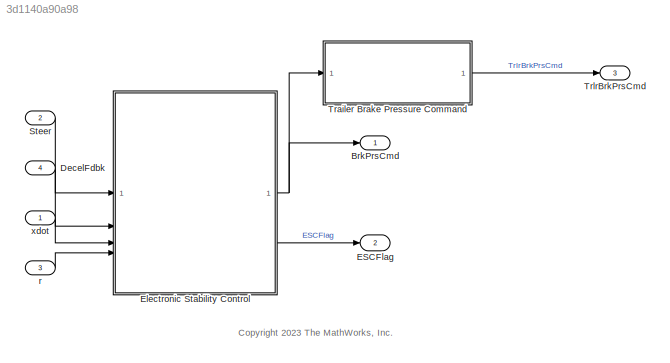
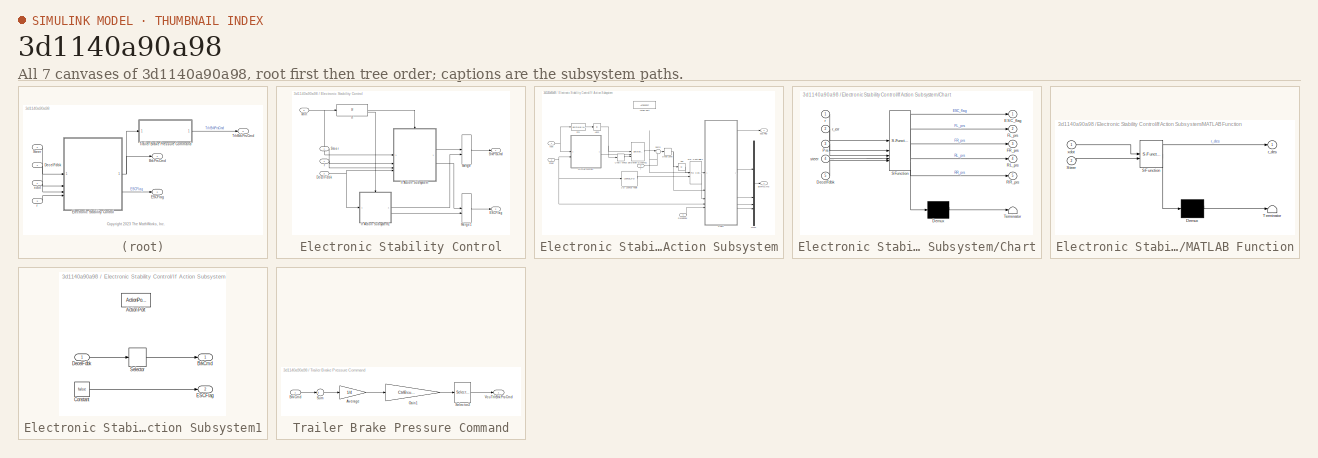
[diagram: thumbnail index - all 7 canvases of the model, root first then tree order]
MODEL slx_3d1140a90a98
KIND model
BLOCK [Outport] BrkPrsCmd
  OutDataTypeStr = double
  VectorParamsAs1DForOutWhenUnconnected = off
BLOCK [Inport] DecelFdbk
  OutDataTypeStr = double
  Port = 4
  PortDimensions = 1
BLOCK [Outport] ESCFlag
  OutDataTypeStr = boolean
  Port = 2
BLOCK [SubSystem] Electronic Stability Control
BLOCK [Outport] Electronic Stability Control/BrkPrsCmd
BLOCK [Inport] Electronic Stability Control/DecelFdbk
  Port = 2
BLOCK [Outport] Electronic Stability Control/ESCFlag
  Port = 2
BLOCK [If] Electronic Stability Control/If
  IfExpression = u1 >= xdot_en
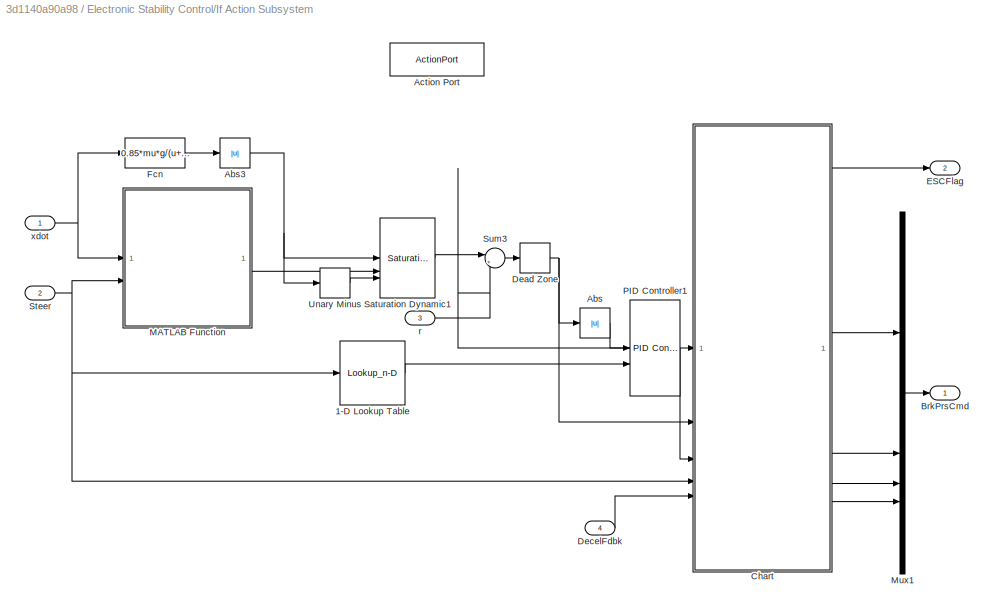
BLOCK [SubSystem] Electronic Stability Control/If Action Subsystem
  TreatAsAtomicUnit = on
BLOCK [Lookup_n-D] Electronic Stability Control/If Action Subsystem/1-D Lookup Table
  BreakpointsForDimension1 = xdotbpt
  InputPortMap = u0
  InternalRulePriority = Speed
  NumberOfTableDimensions = 1
  RndMeth = Simplest
  Table = PGain
BLOCK [Abs] Electronic Stability Control/If Action Subsystem/Abs
  SaturateOnIntegerOverflow = off
BLOCK [Abs] Electronic Stability Control/If Action Subsystem/Abs3
  SaturateOnIntegerOverflow = off
BLOCK [ActionPort] Electronic Stability Control/If Action Subsystem/Action Port
BLOCK [Outport] Electronic Stability Control/If Action Subsystem/BrkPrsCmd
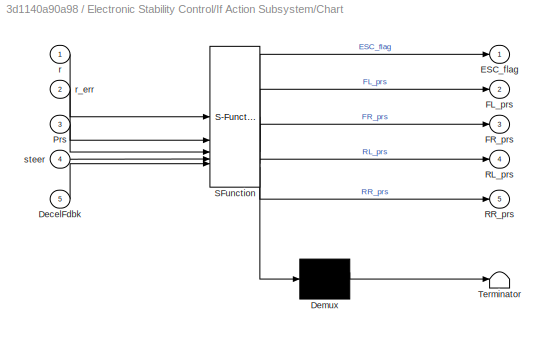
BLOCK [SubSystem] Electronic Stability Control/If Action Subsystem/Chart
  ErrorFcn = Stateflow.Translate.translate
  InitFcn = vehdynicon('vehdynalgo', gcb);
  PermitHierarchicalResolution = ExplicitOnly
  SFBlockType = Chart
  TreatAsAtomicUnit = on
BLOCK [Demux] Electronic Stability Control/If Action Subsystem/Chart/ Demux 
  Outputs = 1
BLOCK [S-Function] Electronic Stability Control/If Action Subsystem/Chart/ SFunction 
  EnableBusSupport = off
  FunctionName = sf_sfun
  PortCounts = [5 6]
  SFcnIsStateOwnerBlock = off
  SFunctionDeploymentMode = off
  Tag = Stateflow S-Function 2
BLOCK [Terminator] Electronic Stability Control/If Action Subsystem/Chart/ Terminator 
BLOCK [Inport] Electronic Stability Control/If Action Subsystem/Chart/DecelFdbk
  Port = 5
BLOCK [Outport] Electronic Stability Control/If Action Subsystem/Chart/ESC_flag
BLOCK [Outport] Electronic Stability Control/If Action Subsystem/Chart/FL_prs
  Port = 2
BLOCK [Outport] Electronic Stability Control/If Action Subsystem/Chart/FR_prs
  Port = 3
BLOCK [Inport] Electronic Stability Control/If Action Subsystem/Chart/Prs
  Port = 3
BLOCK [Outport] Electronic Stability Control/If Action Subsystem/Chart/RL_prs
  Port = 4
BLOCK [Outport] Electronic Stability Control/If Action Subsystem/Chart/RR_prs
  Port = 5
BLOCK [Inport] Electronic Stability Control/If Action Subsystem/Chart/r
BLOCK [Inport] Electronic Stability Control/If Action Subsystem/Chart/r_err
  Port = 2
BLOCK [Inport] Electronic Stability Control/If Action Subsystem/Chart/steer
  Port = 4
BLOCK [DeadZone] Electronic Stability Control/If Action Subsystem/Dead Zone
  LowerValue = -0.001
  UpperValue = 0.001
BLOCK [Inport] Electronic Stability Control/If Action Subsystem/DecelFdbk
  Port = 4
BLOCK [Outport] Electronic Stability Control/If Action Subsystem/ESCFlag
  Port = 2
BLOCK [Fcn] Electronic Stability Control/If Action Subsystem/Fcn
  Expr = 0.85*mu*g/(u+0.01)
BLOCK [SubSystem] Electronic Stability Control/If Action Subsystem/MATLAB Function
  ErrorFcn = Stateflow.Translate.translate
  InitFcn = vehdynicon('vehdynalgo', gcb);
  PermitHierarchicalResolution = ExplicitOnly
  SFBlockType = MATLAB Function
  TreatAsAtomicUnit = on
BLOCK [Demux] Electronic Stability Control/If Action Subsystem/MATLAB Function/ Demux 
  Outputs = 1
BLOCK [S-Function] Electronic Stability Control/If Action Subsystem/MATLAB Function/ SFunction 
  EnableBusSupport = off
  FunctionName = sf_sfun
  Parameters = L,USG,g
  PortCounts = [2 2]
  SFcnIsStateOwnerBlock = off
  SFunctionDeploymentMode = off
  Tag = Stateflow S-Function 3
BLOCK [Terminator] Electronic Stability Control/If Action Subsystem/MATLAB Function/ Terminator 
BLOCK [Inport] Electronic Stability Control/If Action Subsystem/MATLAB Function/Steer
  Port = 2
BLOCK [Outport] Electronic Stability Control/If Action Subsystem/MATLAB Function/r_des
BLOCK [Inport] Electronic Stability Control/If Action Subsystem/MATLAB Function/xdot
BLOCK [Mux] Electronic Stability Control/If Action Subsystem/Mux1
  DisplayOption = bar
BLOCK [Reference] Electronic Stability Control/If Action Subsystem/PID Controller1  REF=slpidlib/PID Controller
  LibrarySourceBlock = simulink/Continuous/PID Controller
  SourceBlock = slpidlib/PID Controller
  SourceType = PID 1dof
BLOCK [Reference] Electronic Stability Control/If Action Subsystem/Saturation Dynamic1  REF=simulink/Discontinuities/Saturation
Dynamic
  SourceBlock = simulink/Discontinuities/Saturation\nDynamic
  SourceType = Saturation Dynamic
BLOCK [Inport] Electronic Stability Control/If Action Subsystem/Steer
  Port = 2
BLOCK [Sum] Electronic Stability Control/If Action Subsystem/Sum3
  Inputs = |+-
BLOCK [UnaryMinus] Electronic Stability Control/If Action Subsystem/Unary Minus
BLOCK [Inport] Electronic Stability Control/If Action Subsystem/r
  Port = 3
BLOCK [Inport] Electronic Stability Control/If Action Subsystem/xdot
BLOCK [SubSystem] Electronic Stability Control/If Action Subsystem1
  TreatAsAtomicUnit = on
BLOCK [ActionPort] Electronic Stability Control/If Action Subsystem1/Action Port
BLOCK [Outport] Electronic Stability Control/If Action Subsystem1/BrkCmd
BLOCK [Constant] Electronic Stability Control/If Action Subsystem1/Constant
  Value = false
BLOCK [Inport] Electronic Stability Control/If Action Subsystem1/DecelFdbk
BLOCK [Outport] Electronic Stability Control/If Action Subsystem1/ESCFlag
  Port = 2
BLOCK [Selector] Electronic Stability Control/If Action Subsystem1/Selector
  IndexOptions = Index vector (dialog)
  Indices = [1 1 1 1]
  InputPortWidth = 1
  OutputSizes = 1
BLOCK [Merge] Electronic Stability Control/Merge
BLOCK [Merge] Electronic Stability Control/Merge1
BLOCK [Inport] Electronic Stability Control/Steer
BLOCK [Inport] Electronic Stability Control/r
  Port = 4
BLOCK [Inport] Electronic Stability Control/xdot
  Port = 3
BLOCK [Inport] Steer
  OutDataTypeStr = double
  Port = 2
  PortDimensions = 1
BLOCK [SubSystem] Trailer Brake Pressure Command
BLOCK [Gain] Trailer Brake Pressure Command/Average
  Gain = 1/4
BLOCK [Inport] Trailer Brake Pressure Command/BrkCmd
BLOCK [Gain] Trailer Brake Pressure Command/Gain1
  Gain = CtrlBcuTrlrBrkGain
BLOCK [Selector] Trailer Brake Pressure Command/Selector2
  IndexOptions = Index vector (dialog)
  Indices = [1 1 1 1 1 1]
  InputPortWidth = 1
  OutputSizes = 1
BLOCK [Sum] Trailer Brake Pressure Command/Sum
  Inputs = +
BLOCK [Outport] Trailer Brake Pressure Command/VcuTrlrBrkPrsCmd
BLOCK [Outport] TrlrBrkPrsCmd
  Port = 3
  PortDimensions = 6
  VectorParamsAs1DForOutWhenUnconnected = off
BLOCK [Inport] r
  OutDataTypeStr = double
  Port = 3
  PortDimensions = 1
BLOCK [Inport] xdot
  OutDataTypeStr = double
  PortDimensions = 1
ANNOTATION (root): <copyright redacted>
LINE DecelFdbk:1 -> Electronic Stability Control:2
NET Electronic Stability Control/DecelFdbk:1 -> Electronic Stability Control/If Action Subsystem1:1, Electronic Stability Control/If Action Subsystem:4
LINE Electronic Stability Control/If Action Subsystem/1-D Lookup Table:1 -> Electronic Stability Control/If Action Subsystem/PID Controller1:2
NET Electronic Stability Control/If Action Subsystem/Abs3:1 -> Electronic Stability Control/If Action Subsystem/Saturation Dynamic1:1, Electronic Stability Control/If Action Subsystem/Unary Minus:1
LINE Electronic Stability Control/If Action Subsystem/Abs:1 -> Electronic Stability Control/If Action Subsystem/PID Controller1:1
LINE Electronic Stability Control/If Action Subsystem/Chart:1 -> Electronic Stability Control/If Action Subsystem/ESCFlag:1
LINE Electronic Stability Control/If Action Subsystem/Chart:2 -> Electronic Stability Control/If Action Subsystem/Mux1:1
LINE Electronic Stability Control/If Action Subsystem/Chart:3 -> Electronic Stability Control/If Action Subsystem/Mux1:2
LINE Electronic Stability Control/If Action Subsystem/Chart:4 -> Electronic Stability Control/If Action Subsystem/Mux1:3
LINE Electronic Stability Control/If Action Subsystem/Chart:5 -> Electronic Stability Control/If Action Subsystem/Mux1:4
NET Electronic Stability Control/If Action Subsystem/Dead Zone:1 -> Electronic Stability Control/If Action Subsystem/Abs:1, Electronic Stability Control/If Action Subsystem/Chart:2
LINE Electronic Stability Control/If Action Subsystem/DecelFdbk:1 -> Electronic Stability Control/If Action Subsystem/Chart:5
LINE Electronic Stability Control/If Action Subsystem/Fcn:1 -> Electronic Stability Control/If Action Subsystem/Abs3:1
LINE Electronic Stability Control/If Action Subsystem/MATLAB Function:1 -> Electronic Stability Control/If Action Subsystem/Saturation Dynamic1:2
LINE Electronic Stability Control/If Action Subsystem/Mux1:1 -> Electronic Stability Control/If Action Subsystem/BrkPrsCmd:1
LINE Electronic Stability Control/If Action Subsystem/PID Controller1:1 -> Electronic Stability Control/If Action Subsystem/Chart:3
LINE Electronic Stability Control/If Action Subsystem/Saturation Dynamic1:1 -> Electronic Stability Control/If Action Subsystem/Sum3:1
NET Electronic Stability Control/If Action Subsystem/Steer:1 -> Electronic Stability Control/If Action Subsystem/1-D Lookup Table:1, Electronic Stability Control/If Action Subsystem/Chart:4, Electronic Stability Control/If Action Subsystem/MATLAB Function:2
LINE Electronic Stability Control/If Action Subsystem/Sum3:1 -> Electronic Stability Control/If Action Subsystem/Dead Zone:1
LINE Electronic Stability Control/If Action Subsystem/Unary Minus:1 -> Electronic Stability Control/If Action Subsystem/Saturation Dynamic1:3
NET Electronic Stability Control/If Action Subsystem/r:1 -> Electronic Stability Control/If Action Subsystem/Chart:1, Electronic Stability Control/If Action Subsystem/Sum3:2
NET Electronic Stability Control/If Action Subsystem/xdot:1 -> Electronic Stability Control/If Action Subsystem/Fcn:1, Electronic Stability Control/If Action Subsystem/MATLAB Function:1
LINE Electronic Stability Control/If Action Subsystem1/Constant:1 -> Electronic Stability Control/If Action Subsystem1/ESCFlag:1
LINE Electronic Stability Control/If Action Subsystem1/DecelFdbk:1 -> Electronic Stability Control/If Action Subsystem1/Selector:1
LINE Electronic Stability Control/If Action Subsystem1/Selector:1 -> Electronic Stability Control/If Action Subsystem1/BrkCmd:1
LINE Electronic Stability Control/If Action Subsystem1:1 -> Electronic Stability Control/Merge:2
LINE Electronic Stability Control/If Action Subsystem1:2 -> Electronic Stability Control/Merge1:2
LINE Electronic Stability Control/If Action Subsystem:1 -> Electronic Stability Control/Merge:1
LINE Electronic Stability Control/If Action Subsystem:2 -> Electronic Stability Control/Merge1:1
LINE Electronic Stability Control/If:1 -> Electronic Stability Control/If Action Subsystem:ifaction
LINE Electronic Stability Control/If:2 -> Electronic Stability Control/If Action Subsystem1:ifaction
LINE Electronic Stability Control/Merge1:1 -> Electronic Stability Control/ESCFlag:1
LINE Electronic Stability Control/Merge:1 -> Electronic Stability Control/BrkPrsCmd:1
LINE Electronic Stability Control/Steer:1 -> Electronic Stability Control/If Action Subsystem:2
LINE Electronic Stability Control/r:1 -> Electronic Stability Control/If Action Subsystem:3
NET Electronic Stability Control/xdot:1 -> Electronic Stability Control/If Action Subsystem:1, Electronic Stability Control/If:1
NET Electronic Stability Control:1 -> BrkPrsCmd:1, Trailer Brake Pressure Command:1
LINE Electronic Stability Control:2 -> ESCFlag:1
LINE Steer:1 -> Electronic Stability Control:1
LINE Trailer Brake Pressure Command/Average:1 -> Trailer Brake Pressure Command/Gain1:1
LINE Trailer Brake Pressure Command/BrkCmd:1 -> Trailer Brake Pressure Command/Sum:1
LINE Trailer Brake Pressure Command/Gain1:1 -> Trailer Brake Pressure Command/Selector2:1
LINE Trailer Brake Pressure Command/Selector2:1 -> Trailer Brake Pressure Command/VcuTrlrBrkPrsCmd:1
LINE Trailer Brake Pressure Command/Sum:1 -> Trailer Brake Pressure Command/Average:1
LINE Trailer Brake Pressure Command:1 -> TrlrBrkPrsCmd:1
LINE r:1 -> Electronic Stability Control:4
LINE xdot:1 -> Electronic Stability Control:3
note: NET lines group one-source signal fan-out (src -> all destinations, sorted); 1:1 wires keep LINE
CHART Electronic Stability Control/If Action
Subsystem/Chart states=6 transitions=13
  STATE_LABEL 'FrntLft_Brake\nentry, during:\nESC_flag = true;\nFL_prs = Prs;\nFR_prs = 0;\nRL_prs = 0;\nRR_prs = 0;\n'
  STATE_LABEL 'Ready\nentry, during:\nESC_flag = false;\nFL_prs = DecelFdbk;\nFR_prs = DecelFdbk;\nRL_prs = DecelFdbk;\nRR_prs = DecelFdbk;'
  STATE_LABEL 'FrntRght_Brake\nentry, during:\nESC_flag = true;\nFL_prs = 0;\nFR_prs = Prs;\nRL_prs = 0;\nRR_prs = 0;'
  STATE_LABEL 'Entrance\nentry, during:\nESC_flag = false;\nFL_prs = DecelFdbk;\nFR_prs = DecelFdbk;\nRL_prs = DecelFdbk;\nRR_prs = DecelFdbk;'
  STATE_LABEL 'RearLft_Brake\nentry, during:\nESC_flag = true;\nFL_prs = 0;\nFR_prs = 0;\nRL_prs = Prs;\nRR_prs = 0;'
  STATE_LABEL 'RearRght_Brake\nentry, during:\nESC_flag = true;\nFL_prs = 0;\nFR_prs = 0;\nRL_prs = Prs;\nRR_prs = 0;'
CHART Electronic Stability Control/If Action
Subsystem/MATLAB Function states=1 transitions=1
  STATE_LABEL 'eML_blk_kernel()'
  STATE_LABEL 'SCRIPT:\nfunction r_des = fcn(xdot, Steer, USG, L, g)\n\nr_des = xdot*Steer/(L+USG*xdot^2/(57.3*g));\n'
CHART  states=0 transitions=0
CHART  states=0 transitions=0
